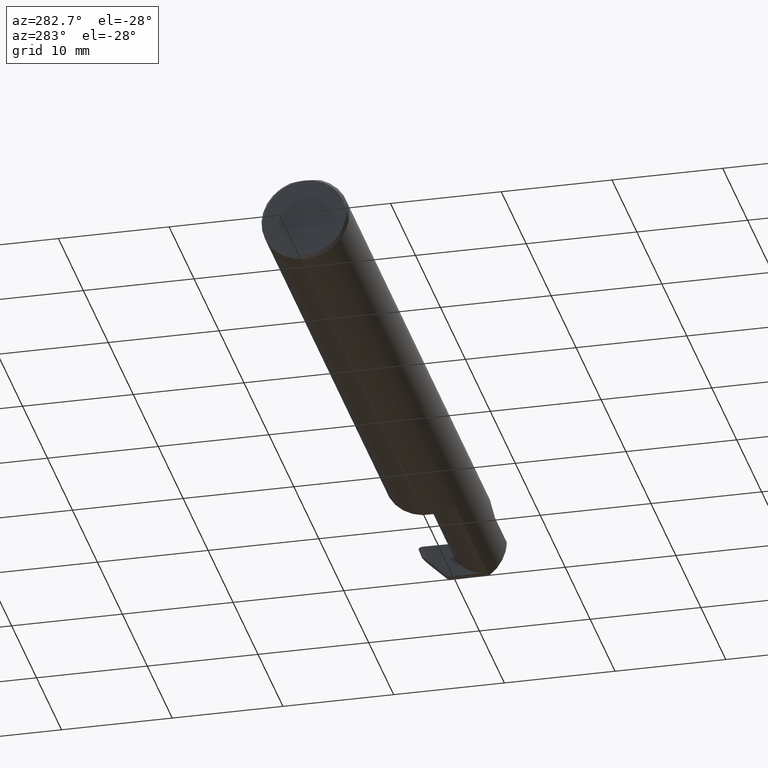
[diagram: clean part render]
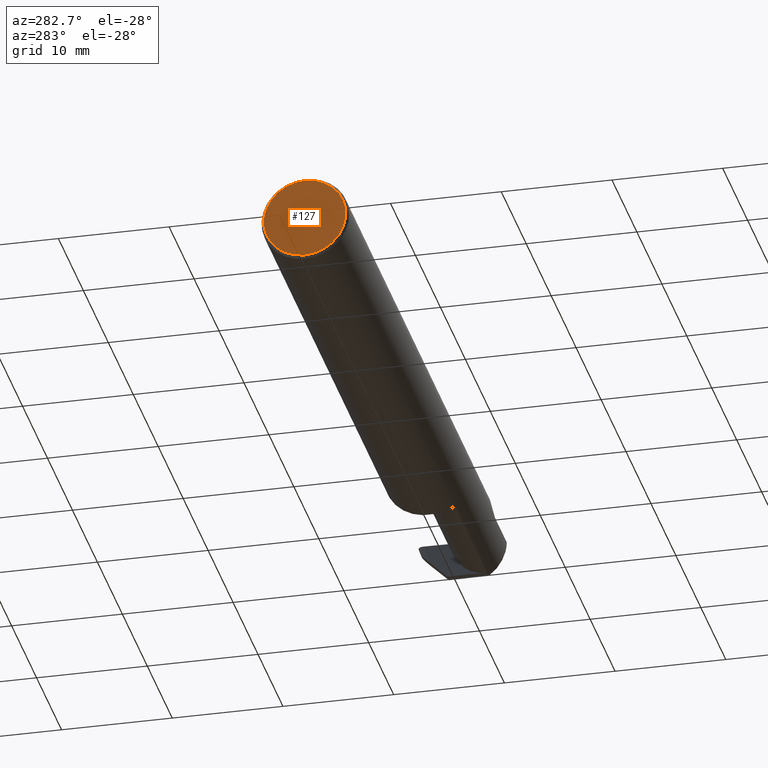
[diagram: same view with one face highlighted and labeled with its STEP entity id]
A machine part, auxiliary view. The second image highlights one B-rep face of the part: STEP entity #127.
In plain terms, the highlighted planar face has unit normal (1, 0, 0).
Its self-contained STEP definition (entity closure, byte-faithful):
#15 = DIRECTION ( 'NONE',  ( -1.000000000000000000, -0.000000000000000000, -0.000000000000000000 ) ) ;
#37 = DIRECTION ( 'NONE',  ( -1.000000000000000000, -0.000000000000000000, -0.000000000000000000 ) ) ;
#51 = ORIENTED_EDGE ( 'NONE', *, *, #343, .T. ) ;
#58 = FACE_OUTER_BOUND ( 'NONE', #587, .T. ) ;
#123 = DIRECTION ( 'NONE',  ( 0.000000000000000000, 0.000000000000000000, -1.000000000000000000 ) ) ;
#127 = ADVANCED_FACE ( 'NONE', ( #58 ), #648, .F. ) ;
#147 = EDGE_CURVE ( 'NONE', #485, #585, #260, .T. ) ;
#160 = AXIS2_PLACEMENT_3D ( 'NONE', #286, #15, #447 ) ;
#235 = CARTESIAN_POINT ( 'NONE',  ( 0.000000000000000000, 0.000000000000000000, 0.000000000000000000 ) ) ;
#260 = CIRCLE ( 'NONE', #160, 0.1460999999999998411 ) ;
#286 = CARTESIAN_POINT ( 'NONE',  ( 0.000000000000000000, 0.000000000000000000, 0.000000000000000000 ) ) ;
#343 = EDGE_CURVE ( 'NONE', #585, #485, #637, .T. ) ;
#426 = ORIENTED_EDGE ( 'NONE', *, *, #147, .T. ) ;
#436 = AXIS2_PLACEMENT_3D ( 'NONE', #235, #601, #123 ) ;
#447 = DIRECTION ( 'NONE',  ( 0.000000000000000000, 0.000000000000000000, -1.000000000000000000 ) ) ;
#472 = DIRECTION ( 'NONE',  ( 0.000000000000000000, 0.000000000000000000, -1.000000000000000000 ) ) ;
#485 = VERTEX_POINT ( 'NONE', #593 ) ;
#579 = AXIS2_PLACEMENT_3D ( 'NONE', #689, #37, #472 ) ;
#585 = VERTEX_POINT ( 'NONE', #658 ) ;
#587 = EDGE_LOOP ( 'NONE', ( #426, #51 ) ) ;
#593 = CARTESIAN_POINT ( 'NONE',  ( 0.000000000000000000, 0.000000000000000000, 0.1460999999999998689 ) ) ;
#601 = DIRECTION ( 'NONE',  ( 1.000000000000000000, 0.000000000000000000, 0.000000000000000000 ) ) ;
#637 = CIRCLE ( 'NONE', #579, 0.1460999999999998411 ) ;
#648 = PLANE ( 'NONE',  #436 ) ;
#658 = CARTESIAN_POINT ( 'NONE',  ( 0.000000000000000000, 0.000000000000000000, -0.1460999999999998411 ) ) ;
#689 = CARTESIAN_POINT ( 'NONE',  ( 0.000000000000000000, 0.000000000000000000, 0.000000000000000000 ) ) ;